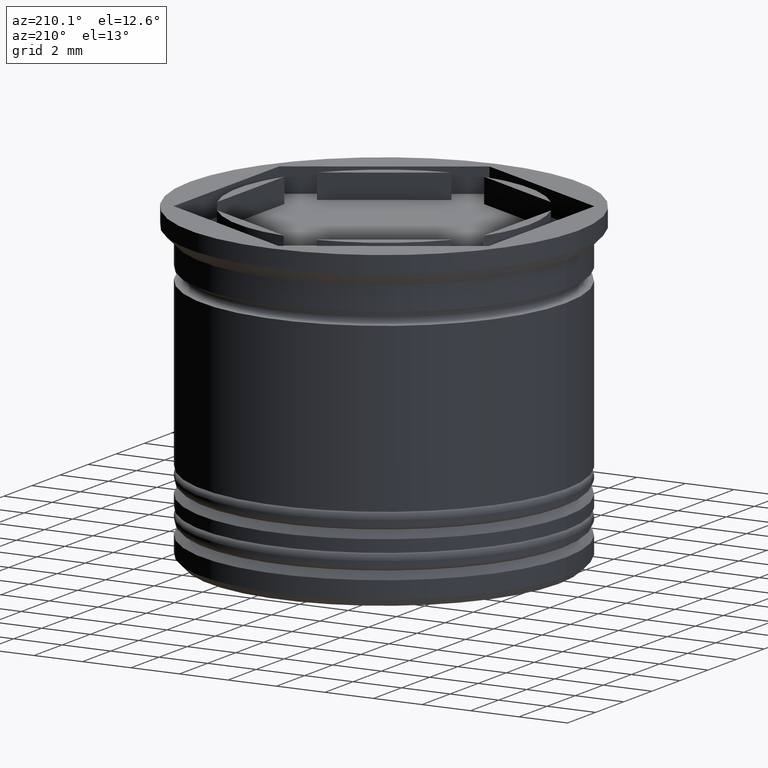
[diagram: clean part render]
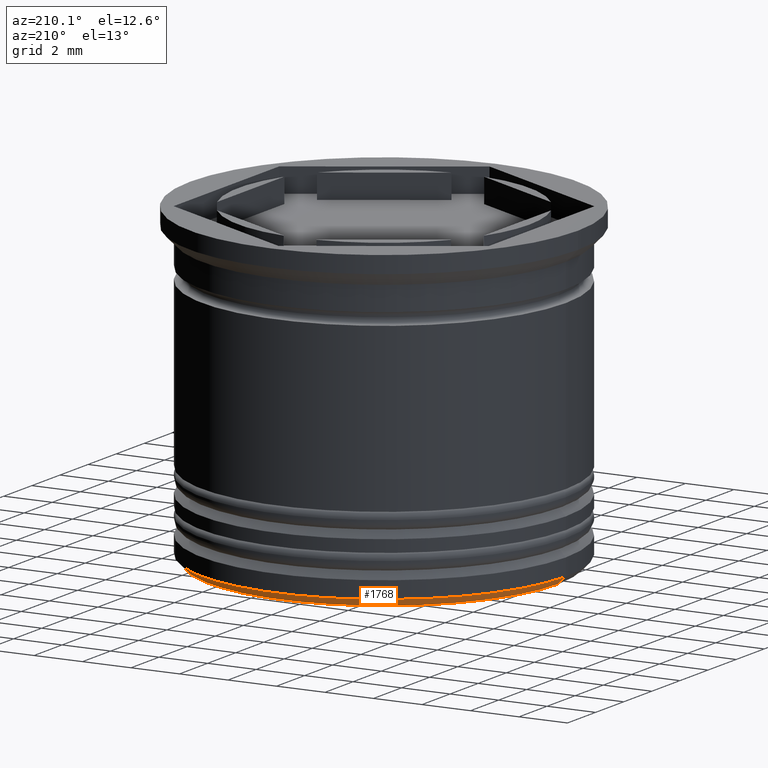
[diagram: same view with one face highlighted and labeled with its STEP entity id]
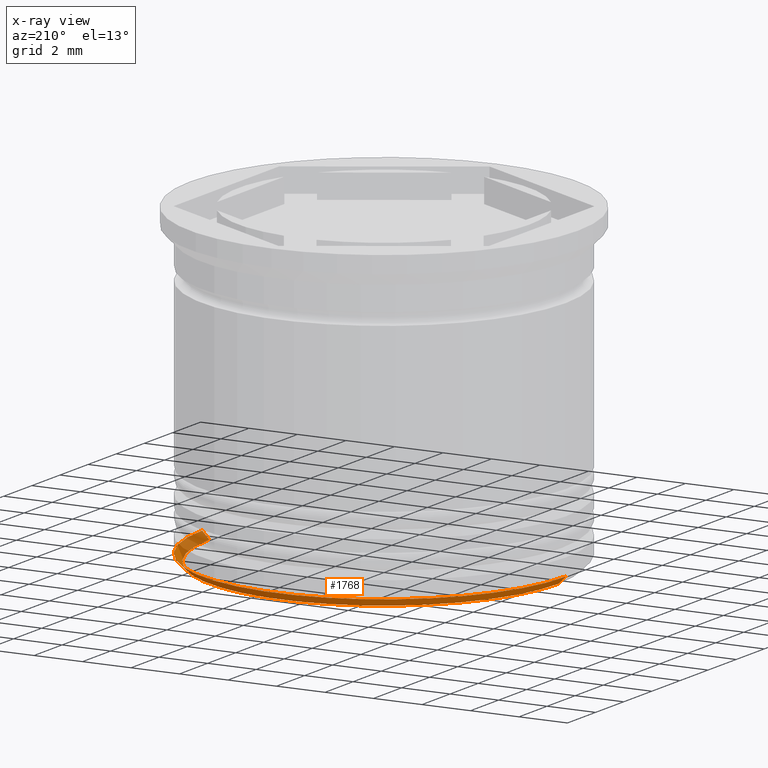
[diagram: x-ray of the same camera — body ghosted, the highlighted face saturated]
A machine part, auxiliary view. The second image highlights one B-rep face of the part: STEP entity #1768.
The next image is the same camera in x-ray: the body ghosted, the highlighted face saturated — about 13% of this face is hidden behind the body in this view.
In plain terms, the highlighted conical surface has half-angle 45 deg.
Its self-contained STEP definition (entity closure, byte-faithful):
#5 = DIRECTION ( 'NONE',  ( -1.000000000000000000, 0.000000000000000000, 0.000000000000000000 ) ) ;
#46 = CARTESIAN_POINT ( 'NONE',  ( 0.000000000000000000, 0.000000000000000000, -12.70000000000000284 ) ) ;
#143 = EDGE_CURVE ( 'NONE', #1322, #1011, #1936, .T. ) ;
#188 = CIRCLE ( 'NONE', #429, 7.199999999999998401 ) ;
#212 = VERTEX_POINT ( 'NONE', #1302 ) ;
#248 = ORIENTED_EDGE ( 'NONE', *, *, #414, .F. ) ;
#261 = DIRECTION ( 'NONE',  ( -0.000000000000000000, -0.000000000000000000, 1.000000000000000000 ) ) ;
#349 = DIRECTION ( 'NONE',  ( 0.7071067811865526798, 0.000000000000000000, 0.7071067811865424657 ) ) ;
#394 = ORIENTED_EDGE ( 'NONE', *, *, #143, .F. ) ;
#402 = CARTESIAN_POINT ( 'NONE',  ( -7.500000000000000888, 9.184850993605149917E-16, -12.70000000000000284 ) ) ;
#414 = EDGE_CURVE ( 'NONE', #1787, #212, #188, .T. ) ;
#424 = AXIS2_PLACEMENT_3D ( 'NONE', #46, #613, #5 ) ;
#429 = AXIS2_PLACEMENT_3D ( 'NONE', #615, #1218, #1558 ) ;
#500 = LINE ( 'NONE', #1588, #505 ) ;
#505 = VECTOR ( 'NONE', #349, 1000.000000000000000 ) ;
#579 = EDGE_CURVE ( 'NONE', #212, #1322, #500, .T. ) ;
#613 = DIRECTION ( 'NONE',  ( -0.000000000000000000, -0.000000000000000000, 1.000000000000000000 ) ) ;
#615 = CARTESIAN_POINT ( 'NONE',  ( 0.000000000000000000, 0.000000000000000000, -13.00000000000000178 ) ) ;
#694 = ORIENTED_EDGE ( 'NONE', *, *, #963, .T. ) ;
#867 = CARTESIAN_POINT ( 'NONE',  ( 0.000000000000000000, 0.000000000000000000, -12.70000000000000284 ) ) ;
#963 = EDGE_CURVE ( 'NONE', #1787, #1011, #1389, .T. ) ;
#1011 = VERTEX_POINT ( 'NONE', #1730 ) ;
#1046 = VECTOR ( 'NONE', #1647, 1000.000000000000000 ) ;
#1218 = DIRECTION ( 'NONE',  ( 0.000000000000000000, 0.000000000000000000, -1.000000000000000000 ) ) ;
#1243 = AXIS2_PLACEMENT_3D ( 'NONE', #867, #261, #1494 ) ;
#1260 = EDGE_LOOP ( 'NONE', ( #248, #694, #394, #1269 ) ) ;
#1269 = ORIENTED_EDGE ( 'NONE', *, *, #579, .F. ) ;
#1302 = CARTESIAN_POINT ( 'NONE',  ( 7.199999999999998401, 0.000000000000000000, -13.00000000000000178 ) ) ;
#1322 = VERTEX_POINT ( 'NONE', #1955 ) ;
#1389 = LINE ( 'NONE', #402, #1046 ) ;
#1488 = CARTESIAN_POINT ( 'NONE',  ( -7.199999999999998401, 9.001153973733045617E-16, -13.00000000000000178 ) ) ;
#1494 = DIRECTION ( 'NONE',  ( 1.000000000000000000, 0.000000000000000000, 0.000000000000000000 ) ) ;
#1558 = DIRECTION ( 'NONE',  ( -1.000000000000000000, 0.000000000000000000, 0.000000000000000000 ) ) ;
#1588 = CARTESIAN_POINT ( 'NONE',  ( 7.500000000000000888, 0.000000000000000000, -12.70000000000000284 ) ) ;
#1611 = CONICAL_SURFACE ( 'NONE', #1243, 7.500000000000000888, 0.7853981633974554954 ) ;
#1647 = DIRECTION ( 'NONE',  ( -0.7071067811865526798, 8.659560562354995721E-17, 0.7071067811865424657 ) ) ;
#1730 = CARTESIAN_POINT ( 'NONE',  ( -7.500000000000000888, 9.184850993605149917E-16, -12.70000000000000284 ) ) ;
#1768 = ADVANCED_FACE ( 'NONE', ( #1786 ), #1611, .T. ) ;
#1786 = FACE_OUTER_BOUND ( 'NONE', #1260, .T. ) ;
#1787 = VERTEX_POINT ( 'NONE', #1488 ) ;
#1936 = CIRCLE ( 'NONE', #424, 7.500000000000000888 ) ;
#1955 = CARTESIAN_POINT ( 'NONE',  ( 7.500000000000000888, 0.000000000000000000, -12.70000000000000284 ) ) ;